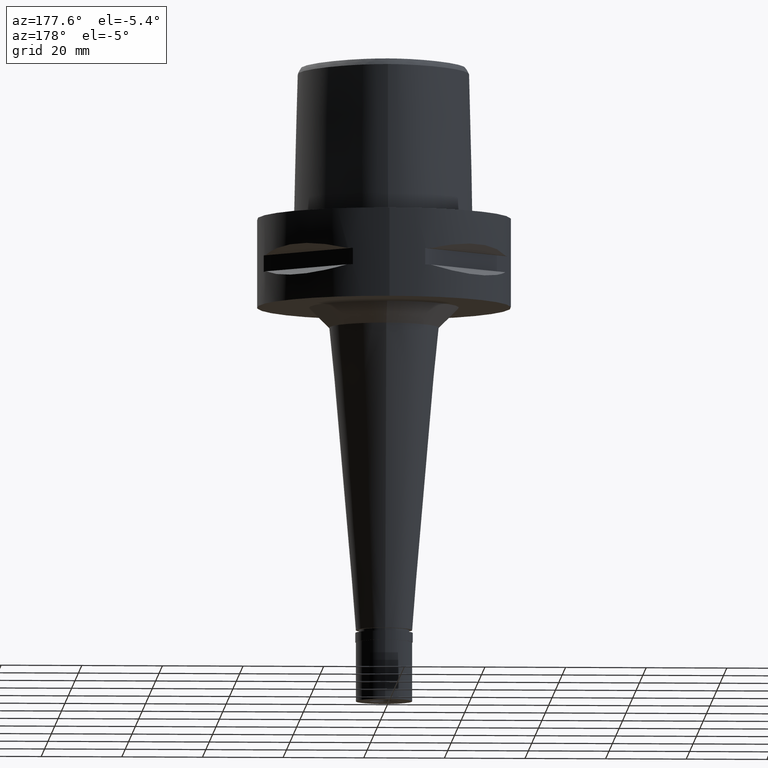
[diagram: clean part render]
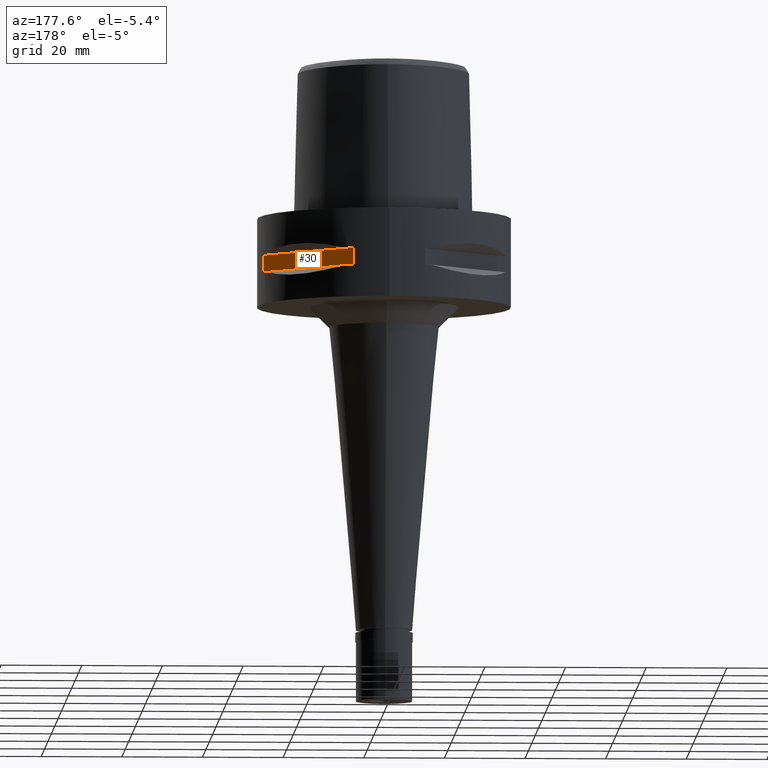
[diagram: same view with one face highlighted and labeled with its STEP entity id]
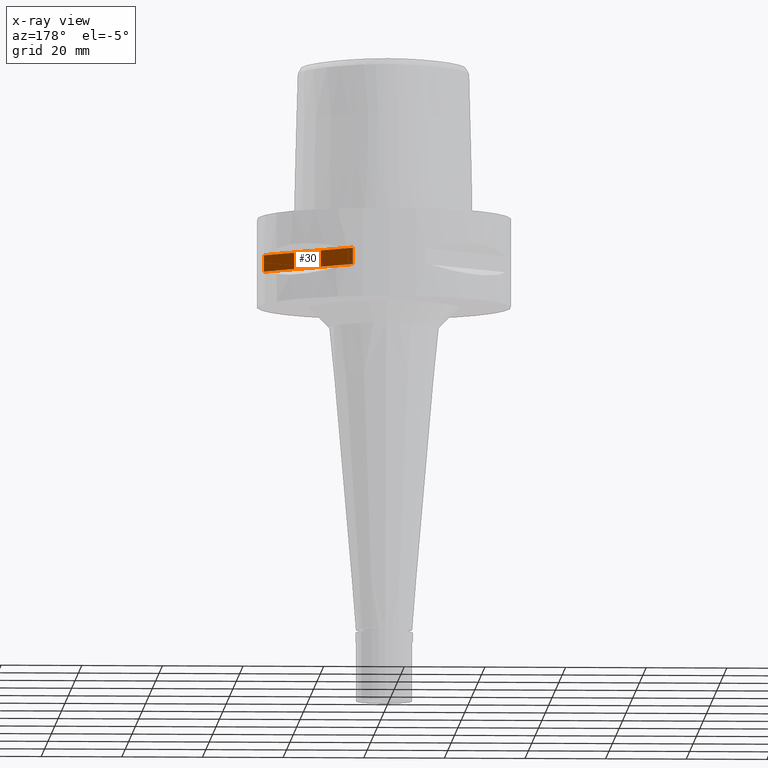
[diagram: x-ray of the same camera — body ghosted, the highlighted face saturated]
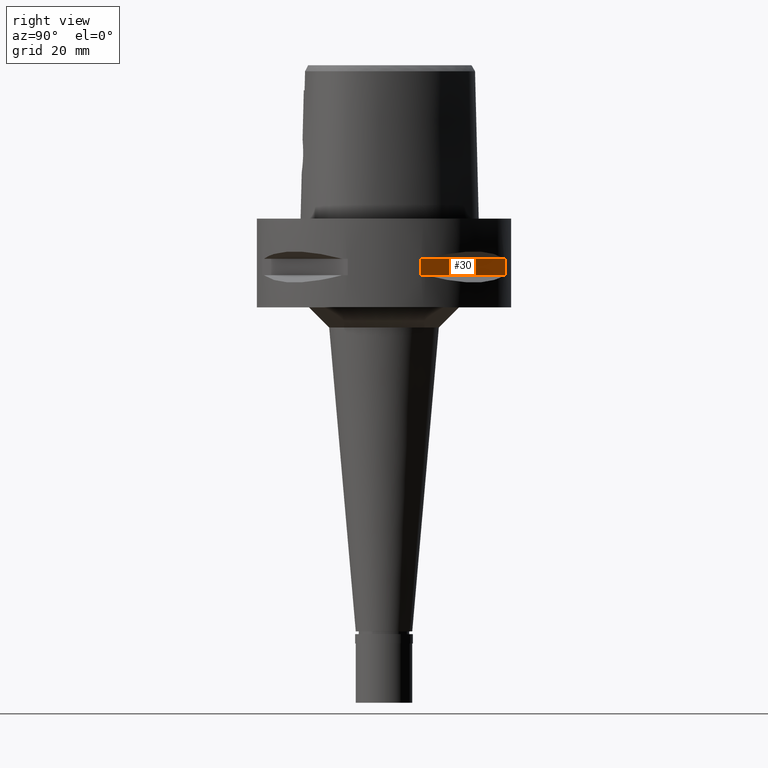
[diagram: same view with one face highlighted and labeled with its STEP entity id]
A machine part, auxiliary view. The second image highlights one B-rep face of the part: STEP entity #30.
The next image is the same camera in x-ray: the body ghosted, the highlighted face saturated — about 0% of this face is hidden behind the body in this view.
A second angle (right view) of the same face is appended — the face is thin or edge-on in the first view.
In plain terms, the highlighted planar face has unit normal (-0.7071, -0.7071, 0).
Its self-contained STEP definition (entity closure, byte-faithful):
#30 = ADVANCED_FACE ( 'NONE', ( #3536 ), #4658, .F. ) ;
#90 = DIRECTION ( 'NONE',  ( -0.7071067811865475727, 0.7071067811865475727, 0.0000000000000000000 ) ) ;
#352 = LINE ( 'NONE', #3433, #1051 ) ;
#394 = VECTOR ( 'NONE', #2278, 1000.000000000000000 ) ;
#468 = CARTESIAN_POINT ( 'NONE',  ( 30.19251670572000279, 8.981198972017999438, -14.05000000000000071 ) ) ;
#834 = CARTESIAN_POINT ( 'NONE',  ( 5.444722215136000187, 33.72899346260000186, -9.950000000000001066 ) ) ;
#910 = EDGE_CURVE ( 'NONE', #1493, #4740, #954, .T. ) ;
#954 = LINE ( 'NONE', #4397, #2827 ) ;
#1051 = VECTOR ( 'NONE', #2580, 1000.000000000000114 ) ;
#1270 = CARTESIAN_POINT ( 'NONE',  ( 30.19251670572000279, 8.981198972017999438, -9.950000000000001066 ) ) ;
#1283 = EDGE_CURVE ( 'NONE', #2217, #4325, #2634, .T. ) ;
#1493 = VERTEX_POINT ( 'NONE', #3705 ) ;
#2197 = EDGE_CURVE ( 'NONE', #1493, #4325, #2454, .T. ) ;
#2217 = VERTEX_POINT ( 'NONE', #3606 ) ;
#2278 = DIRECTION ( 'NONE',  ( 0.0000000000000000000, 0.0000000000000000000, 1.000000000000000000 ) ) ;
#2379 = DIRECTION ( 'NONE',  ( -0.7071067811865475727, -0.7071067811865475727, 0.0000000000000000000 ) ) ;
#2454 = LINE ( 'NONE', #1270, #4891 ) ;
#2580 = DIRECTION ( 'NONE',  ( -0.7071067811865474617, 0.7071067811865474617, 0.0000000000000000000 ) ) ;
#2600 = EDGE_CURVE ( 'NONE', #4740, #2217, #352, .T. ) ;
#2634 = LINE ( 'NONE', #2656, #394 ) ;
#2656 = CARTESIAN_POINT ( 'NONE',  ( 8.981198972017999438, 30.19251670572000279, -14.05000000000000071 ) ) ;
#2747 = ORIENTED_EDGE ( 'NONE', *, *, #2600, .T. ) ;
#2750 = ORIENTED_EDGE ( 'NONE', *, *, #1283, .T. ) ;
#2827 = VECTOR ( 'NONE', #4322, 1000.000000000000000 ) ;
#3390 = EDGE_LOOP ( 'NONE', ( #4848, #4137, #2747, #2750 ) ) ;
#3433 = CARTESIAN_POINT ( 'NONE',  ( 30.19251670572000279, 8.981198972017999438, -14.05000000000000071 ) ) ;
#3536 = FACE_OUTER_BOUND ( 'NONE', #3390, .T. ) ;
#3606 = CARTESIAN_POINT ( 'NONE',  ( 8.981198972019999616, 30.19251670572000279, -14.05000000000000071 ) ) ;
#3705 = CARTESIAN_POINT ( 'NONE',  ( 30.19251670572000279, 8.981198972019999616, -9.950000000000001066 ) ) ;
#3973 = DIRECTION ( 'NONE',  ( -0.7071067811865474617, 0.7071067811865474617, 0.0000000000000000000 ) ) ;
#4087 = AXIS2_PLACEMENT_3D ( 'NONE', #834, #2379, #90 ) ;
#4137 = ORIENTED_EDGE ( 'NONE', *, *, #910, .T. ) ;
#4145 = CARTESIAN_POINT ( 'NONE',  ( 8.981198972017999438, 30.19251670572000279, -9.950000000000001066 ) ) ;
#4322 = DIRECTION ( 'NONE',  ( 0.0000000000000000000, 0.0000000000000000000, -1.000000000000000000 ) ) ;
#4325 = VERTEX_POINT ( 'NONE', #4145 ) ;
#4397 = CARTESIAN_POINT ( 'NONE',  ( 30.19251670572000279, 8.981198972017999438, -9.950000000000001066 ) ) ;
#4658 = PLANE ( 'NONE',  #4087 ) ;
#4740 = VERTEX_POINT ( 'NONE', #468 ) ;
#4848 = ORIENTED_EDGE ( 'NONE', *, *, #2197, .F. ) ;
#4891 = VECTOR ( 'NONE', #3973, 1000.000000000000114 ) ;